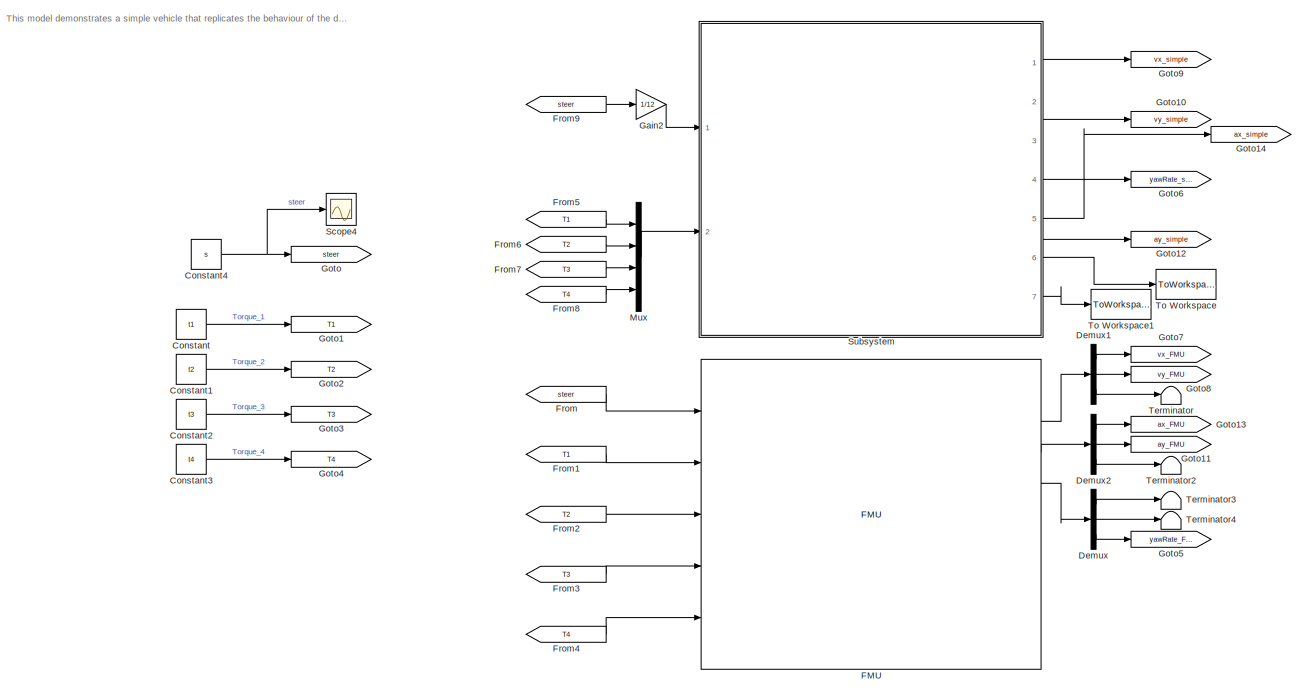
[diagram: root canvas - part 1/2, most of the canvas]
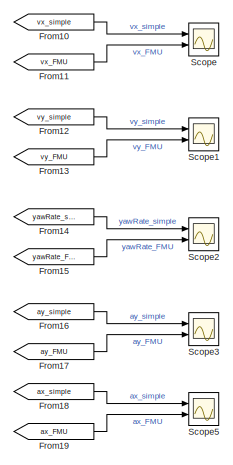
[diagram: root canvas - part 2/2, middle right region]
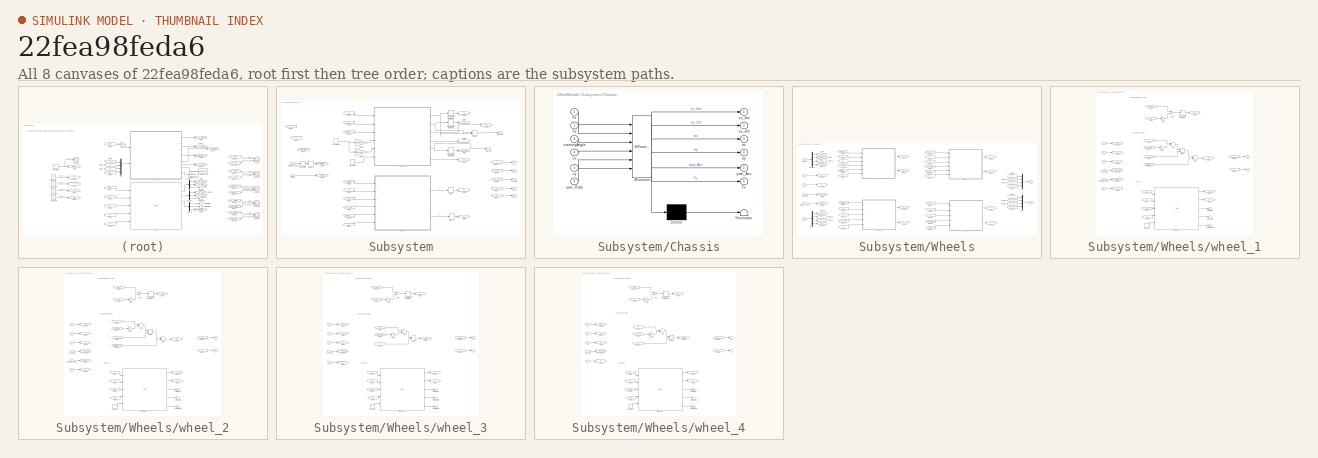
[diagram: thumbnail index - all 8 canvases of the model, root first then tree order]
MODEL slx_22fea98feda6
KIND model
CONFIG AbsTol = auto
CONFIG EnableMultiTasking = off
CONFIG FixedStep = 0.01
CONFIG MaxStep = auto
CONFIG MinStep = auto
CONFIG RelTol = 1e-3
CONFIG SampleTimeConstraint = Unconstrained
CONFIG Solver = FixedStepAuto
CONFIG SolverName = FixedStepAuto
CONFIG StartTime = 0.0
CONFIG StopTime = 10
BLOCK [Constant] Constant
  Value = t1
BLOCK [Constant] Constant1
  Value = t2
BLOCK [Constant] Constant2
  Value = t3
BLOCK [Constant] Constant3
  Value = t4
BLOCK [Constant] Constant4
  Value = s
BLOCK [Demux] Demux
  DisplayOption = bar
  Outputs = 3
  Ports = [1, 3]
BLOCK [Demux] Demux1
  DisplayOption = bar
  Outputs = 3
  Ports = [1, 3]
BLOCK [Demux] Demux2
  DisplayOption = bar
  Outputs = 3
  Ports = [1, 3]
BLOCK [FMU] FMU
  FMUMode = CoSimulation
  FMUName = MED2018_VehicleModel.fmu
  FMUSampleTime = -1
  MaskDisplay = if (exist([Simulink.fileGenControl('get','CacheFolder') '\slprj\_fmu\1f5a25ec6c86b4ef435058314a7136be\MED2018_VehicleModel\model.png'],'file'))\n    image([Simulink.fileGenControl('get','CacheFolder') '\slprj\_fmu\1f5a25ec6c86b4ef435058314a7136be\MED2018_VehicleModel\model.png']);\n    text(0.03, 0.97, 'MED2018.VehicleModel', 'horizontalAlignment', 'left', 'verticalAlignment', 'top');\nelse\n    disp(...<+596ch>
  MaskPromptString = Communication StepsizeCommunication stepsize between FMU and Simulink
  MaskType = MED2018.VehicleModel [Co-Simulation, v2.0]
  Ports = [5, 9]
BLOCK [From] From
  GotoTag = steer
BLOCK [From] From1
  GotoTag = T1
BLOCK [From] From10
  GotoTag = vx_simple
BLOCK [From] From11
  GotoTag = vx_FMU
BLOCK [From] From12
  GotoTag = vy_simple
BLOCK [From] From13
  GotoTag = vy_FMU
BLOCK [From] From14
  GotoTag = yawRate_simple
BLOCK [From] From15
  GotoTag = yawRate_FMU
BLOCK [From] From16
  GotoTag = ay_simple
BLOCK [From] From17
  GotoTag = ay_FMU
BLOCK [From] From18
  GotoTag = ax_simple
BLOCK [From] From19
  GotoTag = ax_FMU
BLOCK [From] From2
  GotoTag = T2
BLOCK [From] From3
  GotoTag = T3
BLOCK [From] From4
  GotoTag = T4
BLOCK [From] From5
  GotoTag = T1
BLOCK [From] From6
  GotoTag = T2
BLOCK [From] From7
  GotoTag = T3
BLOCK [From] From8
  GotoTag = T4
BLOCK [From] From9
  GotoTag = steer
BLOCK [Gain] Gain2
  Gain = 1/12
  OutDataTypeStr = Inherit: Inherit via internal rule
  ParamDataTypeStr = Inherit: Inherit via internal rule
  SaturateOnIntegerOverflow = off
BLOCK [Goto] Goto
  GotoTag = steer
BLOCK [Goto] Goto1
  GotoTag = T1
BLOCK [Goto] Goto10
  GotoTag = vy_simple
BLOCK [Goto] Goto11
  GotoTag = ay_FMU
BLOCK [Goto] Goto12
  GotoTag = ay_simple
BLOCK [Goto] Goto13
  GotoTag = ax_FMU
BLOCK [Goto] Goto14
  GotoTag = ax_simple
BLOCK [Goto] Goto2
  GotoTag = T2
BLOCK [Goto] Goto3
  GotoTag = T3
BLOCK [Goto] Goto4
  GotoTag = T4
BLOCK [Goto] Goto5
  GotoTag = yawRate_FMU
BLOCK [Goto] Goto6
  GotoTag = yawRate_simple
BLOCK [Goto] Goto7
  GotoTag = vx_FMU
BLOCK [Goto] Goto8
  GotoTag = vy_FMU
BLOCK [Goto] Goto9
  GotoTag = vx_simple
BLOCK [Mux] Mux
  DisplayOption = bar
  Ports = [4, 1]
BLOCK [Scope] Scope
  NumInputPorts = 2
  Ports = [2]
  ScopeSpecificationString = Simulink.scopes.TimeScopeBlockCfg('CurrentConfiguration', extmgr.ConfigurationSet(extmgr.Configuration('Core','General UI',true),extmgr.Configuration('Core','Source UI',true),extmgr.Configuration('Sources','WiredSimulink',true),extmgr.Configuration('Visuals','Time Domain',true,'SerializedDisplays',{struct('MinYLimReal','15.79467','MaxYLimReal','20.86538','YLabelReal','','MinYLimMag','15.79467','Ma...<+1388ch>
BLOCK [Scope] Scope1
  NumInputPorts = 2
  Ports = [2]
  ScopeSpecificationString = Simulink.scopes.TimeScopeBlockCfg('CurrentConfiguration', extmgr.ConfigurationSet(extmgr.Configuration('Core','General UI',true),extmgr.Configuration('Core','Source UI',true),extmgr.Configuration('Sources','WiredSimulink',true,'DataLoggingVariableName','ScopeData1'),extmgr.Configuration('Visuals','Time Domain',true,'SerializedDisplays',{struct('MinYLimReal','-0.60925','MaxYLimReal','0.41192','YLab...<+1414ch>
BLOCK [Scope] Scope2
  NumInputPorts = 2
  Ports = [2]
  ScopeSpecificationString = Simulink.scopes.TimeScopeBlockCfg('CurrentConfiguration', extmgr.ConfigurationSet(extmgr.Configuration('Core','General UI',true),extmgr.Configuration('Core','Source UI',true),extmgr.Configuration('Sources','WiredSimulink',true,'DataLoggingVariableName','ScopeData2'),extmgr.Configuration('Visuals','Time Domain',true,'SerializedDisplays',{struct('MinYLimReal','-0.30103','MaxYLimReal','0.34992','YLab...<+1440ch>
BLOCK [Scope] Scope3
  NumInputPorts = 2
  Ports = [2]
  ScopeSpecificationString = Simulink.scopes.TimeScopeBlockCfg('CurrentConfiguration', extmgr.ConfigurationSet(extmgr.Configuration('Core','General UI',true),extmgr.Configuration('Core','Source UI',true),extmgr.Configuration('Sources','WiredSimulink',true,'DataLoggingVariableName','ScopeData3'),extmgr.Configuration('Visuals','Time Domain',true,'SerializedDisplays',{struct('MinYLimReal','-4.2624','MaxYLimReal','11.3736','YLabe...<+1428ch>
BLOCK [Scope] Scope4
  NumInputPorts = 1
  Ports = [1]
  ScopeSpecificationString = Simulink.scopes.TimeScopeBlockCfg('CurrentConfiguration', extmgr.ConfigurationSet(extmgr.Configuration('Core','General UI',true),extmgr.Configuration('Core','Source UI',true),extmgr.Configuration('Sources','WiredSimulink',true,'DataLoggingVariableName','ScopeData4'),extmgr.Configuration('Visuals','Time Domain',true,'SerializedDisplays',{struct('MinYLimReal','-0.0625','MaxYLimReal','0.0625','YLabel...<+1407ch>
BLOCK [Scope] Scope5
  NumInputPorts = 2
  Ports = [2]
  ScopeSpecificationString = Simulink.scopes.TimeScopeBlockCfg('CurrentConfiguration', extmgr.ConfigurationSet(extmgr.Configuration('Core','General UI',true),extmgr.Configuration('Core','Source UI',true),extmgr.Configuration('Sources','WiredSimulink',true,'DataLoggingVariableName','ScopeData1'),extmgr.Configuration('Visuals','Time Domain',true,'SerializedDisplays',{struct('MinYLimReal','-13.06616','MaxYLimReal','13.12349','YL...<+1423ch>
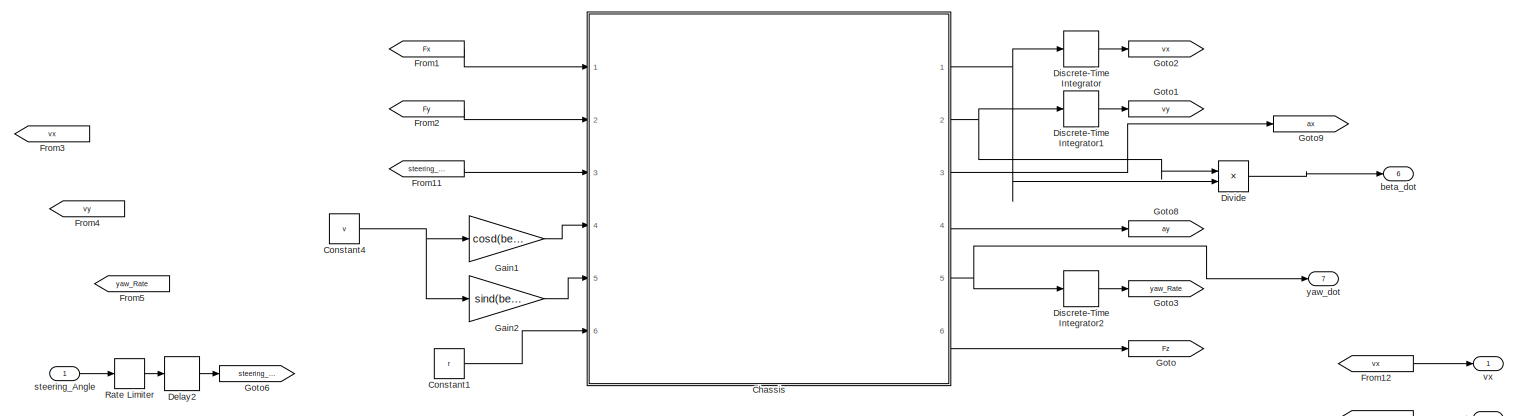
[diagram: Subsystem - part 1/2, full width, top band]
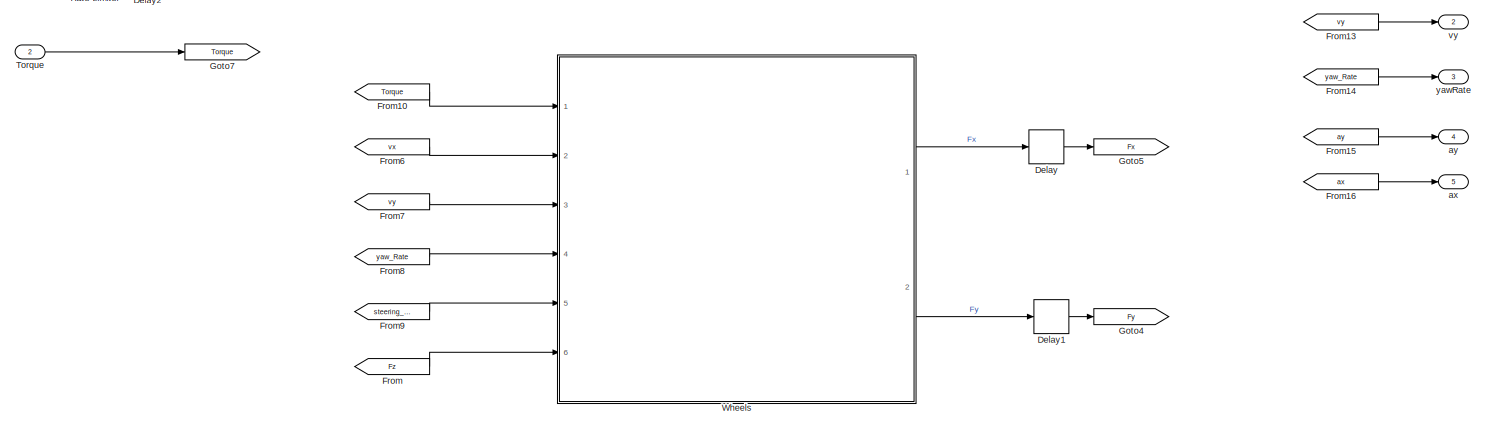
[diagram: Subsystem - part 2/2, full width, bottom band]
BLOCK [SubSystem] Subsystem
  Ports = [2, 7]
  RequestExecContextInheritance = off
  Variant = off
BLOCK [SubSystem] Subsystem/Chassis
  ErrorFcn = Stateflow.Translate.translate
  PermitHierarchicalResolution = ExplicitOnly
  Ports = [6, 6]
  RequestExecContextInheritance = off
  SFBlockType = MATLAB Function
  TreatAsAtomicUnit = on
  Variant = off
BLOCK [Demux] Subsystem/Chassis/ Demux 
  Outputs = 1
  Ports = [1, 1]
BLOCK [S-Function] Subsystem/Chassis/ SFunction 
  EnableBusSupport = on
  FunctionName = sf_sfun
  Parameters = Izz,g,h,lf,lr,m,tf,tr
  PortCounts = [6 7]
  Ports = [6, 7]
  SFcnIsStateOwnerBlock = off
  SFunctionDeploymentMode = off
  Tag = Stateflow S-Function modelfit 2
BLOCK [Terminator] Subsystem/Chassis/ Terminator 
BLOCK [Inport] Subsystem/Chassis/Fx
  IconDisplay = Port number
BLOCK [Inport] Subsystem/Chassis/Fy
  IconDisplay = Port number
  Port = 2
BLOCK [Outport] Subsystem/Chassis/Fz
  IconDisplay = Port number
  Port = 6
BLOCK [Outport] Subsystem/Chassis/ax
  IconDisplay = Port number
  Port = 3
BLOCK [Outport] Subsystem/Chassis/ay
  IconDisplay = Port number
  Port = 4
BLOCK [Inport] Subsystem/Chassis/steeringAngle
  IconDisplay = Port number
  Port = 3
BLOCK [Inport] Subsystem/Chassis/vx
  IconDisplay = Port number
  Port = 4
BLOCK [Outport] Subsystem/Chassis/vx_dot
  IconDisplay = Port number
BLOCK [Inport] Subsystem/Chassis/vy
  IconDisplay = Port number
  Port = 5
BLOCK [Outport] Subsystem/Chassis/vy_dot
  IconDisplay = Port number
  Port = 2
BLOCK [Outport] Subsystem/Chassis/yaw_Acc
  IconDisplay = Port number
  Port = 5
BLOCK [Inport] Subsystem/Chassis/yaw_Rate
  IconDisplay = Port number
  Port = 6
BLOCK [Constant] Subsystem/Constant1
  Value = r
BLOCK [Constant] Subsystem/Constant4
  Value = v
BLOCK [Delay] Subsystem/Delay
  DelayLength = 1
  InitialCondition = [m*g*lr/(lf+lr)/2;m*g*lr/(lf+lr)/2;m*g*lf/(lf+lr)/2;m*g*lf/(lf+lr)/2]
  InputPortMap = u0
  Ports = [1, 1]
BLOCK [Delay] Subsystem/Delay1
  DelayLength = 1
  InitialCondition = [m*g*lr/(lf+lr)/2;m*g*lr/(lf+lr)/2;m*g*lf/(lf+lr)/2;m*g*lf/(lf+lr)/2]
  InputPortMap = u0
  Ports = [1, 1]
BLOCK [Delay] Subsystem/Delay2
  DelayLength = 20
  InitialCondition = 0
  InputPortMap = u0
  Ports = [1, 1]
BLOCK [DiscreteIntegrator] Subsystem/Discrete-Time Integrator
  ICPrevOutput = DiscIntNeverNeededParam
  ICPrevScaledInput = DiscIntNeverNeededParam
  InitialCondition = 60*5/18
  InitialConditionSetting = State (most efficient)
  Ports = [1, 1]
  SampleTime = -1
BLOCK [DiscreteIntegrator] Subsystem/Discrete-Time Integrator1
  ICPrevOutput = DiscIntNeverNeededParam
  ICPrevScaledInput = DiscIntNeverNeededParam
  InitialConditionSetting = State (most efficient)
  Ports = [1, 1]
  SampleTime = -1
BLOCK [DiscreteIntegrator] Subsystem/Discrete-Time Integrator2
  ICPrevOutput = DiscIntNeverNeededParam
  ICPrevScaledInput = DiscIntNeverNeededParam
  InitialConditionSetting = State (most efficient)
  Ports = [1, 1]
  SampleTime = -1
BLOCK [Product] Subsystem/Divide
  InputSameDT = off
  Inputs = */
  OutDataTypeStr = Inherit: Inherit via internal rule
  Ports = [2, 1]
  RndMeth = Floor
  SaturateOnIntegerOverflow = off
BLOCK [From] Subsystem/From
  GotoTag = Fz
BLOCK [From] Subsystem/From1
  GotoTag = Fx
BLOCK [From] Subsystem/From10
  GotoTag = Torque
BLOCK [From] Subsystem/From11
  GotoTag = steering_Angle
BLOCK [From] Subsystem/From12
  GotoTag = vx
BLOCK [From] Subsystem/From13
  GotoTag = vy
BLOCK [From] Subsystem/From14
  GotoTag = yaw_Rate
BLOCK [From] Subsystem/From15
  GotoTag = ay
BLOCK [From] Subsystem/From16
  GotoTag = ax
BLOCK [From] Subsystem/From2
  GotoTag = Fy
BLOCK [From] Subsystem/From3
  GotoTag = vx
BLOCK [From] Subsystem/From4
  GotoTag = vy
BLOCK [From] Subsystem/From5
  GotoTag = yaw_Rate
BLOCK [From] Subsystem/From6
  GotoTag = vx
BLOCK [From] Subsystem/From7
  GotoTag = vy
BLOCK [From] Subsystem/From8
  GotoTag = yaw_Rate
BLOCK [From] Subsystem/From9
  GotoTag = steering_Angle
BLOCK [Gain] Subsystem/Gain1
  Gain = cosd(beta)
  OutDataTypeStr = Inherit: Inherit via internal rule
  ParamDataTypeStr = Inherit: Inherit via internal rule
  SaturateOnIntegerOverflow = off
BLOCK [Gain] Subsystem/Gain2
  Gain = sind(beta)
  OutDataTypeStr = Inherit: Inherit via internal rule
  ParamDataTypeStr = Inherit: Inherit via internal rule
  SaturateOnIntegerOverflow = off
BLOCK [Goto] Subsystem/Goto
  GotoTag = Fz
BLOCK [Goto] Subsystem/Goto1
  GotoTag = vy
BLOCK [Goto] Subsystem/Goto2
  GotoTag = vx
BLOCK [Goto] Subsystem/Goto3
  GotoTag = yaw_Rate
BLOCK [Goto] Subsystem/Goto4
  GotoTag = Fy
BLOCK [Goto] Subsystem/Goto5
  GotoTag = Fx
BLOCK [Goto] Subsystem/Goto6
  GotoTag = steering_Angle
BLOCK [Goto] Subsystem/Goto7
  GotoTag = Torque
BLOCK [Goto] Subsystem/Goto8
  GotoTag = ay
BLOCK [Goto] Subsystem/Goto9
  GotoTag = ax
BLOCK [RateLimiter] Subsystem/Rate Limiter
  FallingSlewLimit = -500*pi/180/12
  RisingSlewLimit = 500*pi/180/12
  SampleTimeMode = inherited
BLOCK [Inport] Subsystem/Torque
  IconDisplay = Port number
  Port = 2
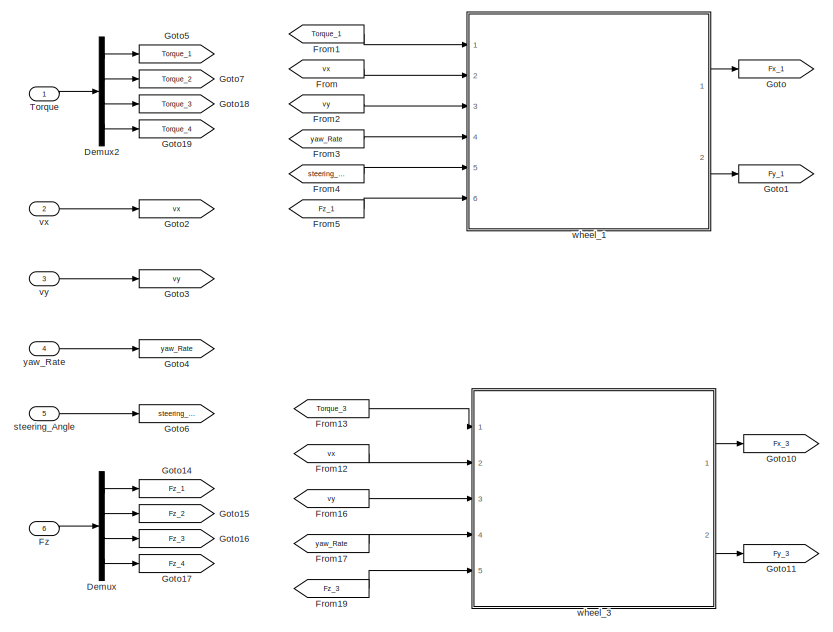
[diagram: Subsystem/Wheels - part 1/2, left side, full height]
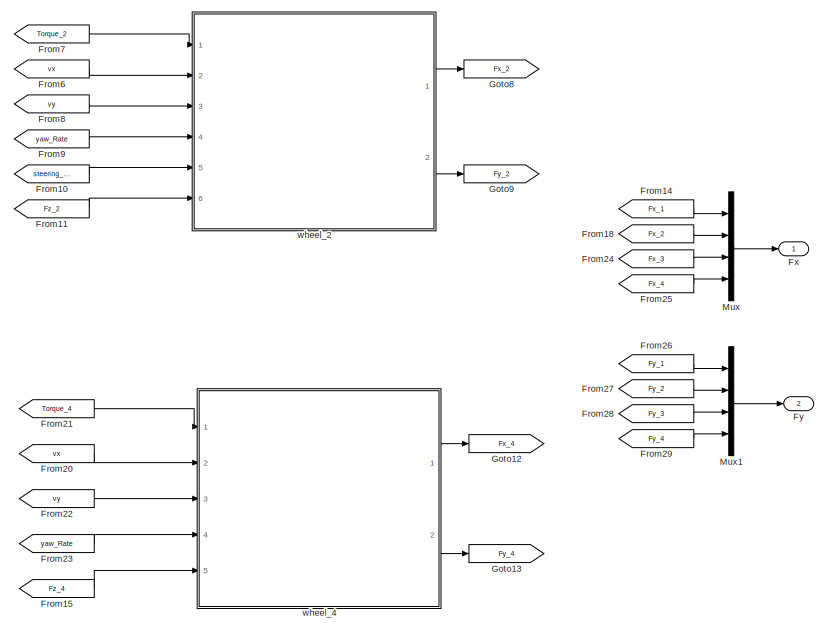
[diagram: Subsystem/Wheels - part 2/2, right side, full height]
BLOCK [SubSystem] Subsystem/Wheels
  Ports = [6, 2]
  Priority = 0
  RequestExecContextInheritance = off
  Variant = off
BLOCK [Demux] Subsystem/Wheels/Demux
  DisplayOption = bar
  Ports = [1, 4]
BLOCK [Demux] Subsystem/Wheels/Demux2
  DisplayOption = bar
  Ports = [1, 4]
BLOCK [From] Subsystem/Wheels/From
  GotoTag = vx
BLOCK [From] Subsystem/Wheels/From1
  GotoTag = Torque_1
BLOCK [From] Subsystem/Wheels/From10
  GotoTag = steering_Angle
BLOCK [From] Subsystem/Wheels/From11
  GotoTag = Fz_2
BLOCK [From] Subsystem/Wheels/From12
  GotoTag = vx
BLOCK [From] Subsystem/Wheels/From13
  GotoTag = Torque_3
BLOCK [From] Subsystem/Wheels/From14
  GotoTag = Fx_1
BLOCK [From] Subsystem/Wheels/From15
  GotoTag = Fz_4
BLOCK [From] Subsystem/Wheels/From16
  GotoTag = vy
BLOCK [From] Subsystem/Wheels/From17
  GotoTag = yaw_Rate
BLOCK [From] Subsystem/Wheels/From18
  GotoTag = Fx_2
BLOCK [From] Subsystem/Wheels/From19
  GotoTag = Fz_3
BLOCK [From] Subsystem/Wheels/From2
  GotoTag = vy
BLOCK [From] Subsystem/Wheels/From20
  GotoTag = vx
BLOCK [From] Subsystem/Wheels/From21
  GotoTag = Torque_4
BLOCK [From] Subsystem/Wheels/From22
  GotoTag = vy
BLOCK [From] Subsystem/Wheels/From23
  GotoTag = yaw_Rate
BLOCK [From] Subsystem/Wheels/From24
  GotoTag = Fx_3
BLOCK [From] Subsystem/Wheels/From25
  GotoTag = Fx_4
BLOCK [From] Subsystem/Wheels/From26
  GotoTag = Fy_1
BLOCK [From] Subsystem/Wheels/From27
  GotoTag = Fy_2
BLOCK [From] Subsystem/Wheels/From28
  GotoTag = Fy_3
BLOCK [From] Subsystem/Wheels/From29
  GotoTag = Fy_4
BLOCK [From] Subsystem/Wheels/From3
  GotoTag = yaw_Rate
BLOCK [From] Subsystem/Wheels/From4
  GotoTag = steering_Angle
BLOCK [From] Subsystem/Wheels/From5
  GotoTag = Fz_1
BLOCK [From] Subsystem/Wheels/From6
  GotoTag = vx
BLOCK [From] Subsystem/Wheels/From7
  GotoTag = Torque_2
BLOCK [From] Subsystem/Wheels/From8
  GotoTag = vy
BLOCK [From] Subsystem/Wheels/From9
  GotoTag = yaw_Rate
BLOCK [Outport] Subsystem/Wheels/Fx
  IconDisplay = Port number
BLOCK [Outport] Subsystem/Wheels/Fy
  IconDisplay = Port number
  Port = 2
BLOCK [Inport] Subsystem/Wheels/Fz
  IconDisplay = Port number
  Port = 6
BLOCK [Goto] Subsystem/Wheels/Goto
  GotoTag = Fx_1
BLOCK [Goto] Subsystem/Wheels/Goto1
  GotoTag = Fy_1
BLOCK [Goto] Subsystem/Wheels/Goto10
  GotoTag = Fx_3
BLOCK [Goto] Subsystem/Wheels/Goto11
  GotoTag = Fy_3
BLOCK [Goto] Subsystem/Wheels/Goto12
  GotoTag = Fx_4
BLOCK [Goto] Subsystem/Wheels/Goto13
  GotoTag = Fy_4
BLOCK [Goto] Subsystem/Wheels/Goto14
  GotoTag = Fz_1
BLOCK [Goto] Subsystem/Wheels/Goto15
  GotoTag = Fz_2
BLOCK [Goto] Subsystem/Wheels/Goto16
  GotoTag = Fz_3
BLOCK [Goto] Subsystem/Wheels/Goto17
  GotoTag = Fz_4
BLOCK [Goto] Subsystem/Wheels/Goto18
  GotoTag = Torque_3
BLOCK [Goto] Subsystem/Wheels/Goto19
  GotoTag = Torque_4
BLOCK [Goto] Subsystem/Wheels/Goto2
  GotoTag = vx
BLOCK [Goto] Subsystem/Wheels/Goto3
  GotoTag = vy
BLOCK [Goto] Subsystem/Wheels/Goto4
  GotoTag = yaw_Rate
BLOCK [Goto] Subsystem/Wheels/Goto5
  GotoTag = Torque_1
BLOCK [Goto] Subsystem/Wheels/Goto6
  GotoTag = steering_Angle
BLOCK [Goto] Subsystem/Wheels/Goto7
  GotoTag = Torque_2
BLOCK [Goto] Subsystem/Wheels/Goto8
  GotoTag = Fx_2
BLOCK [Goto] Subsystem/Wheels/Goto9
  GotoTag = Fy_2
BLOCK [Mux] Subsystem/Wheels/Mux
  DisplayOption = bar
  Ports = [4, 1]
BLOCK [Mux] Subsystem/Wheels/Mux1
  DisplayOption = bar
  Ports = [4, 1]
BLOCK [Inport] Subsystem/Wheels/Torque
  IconDisplay = Port number
BLOCK [Inport] Subsystem/Wheels/steering_Angle
  IconDisplay = Port number
  Port = 5
BLOCK [Inport] Subsystem/Wheels/vx
  IconDisplay = Port number
  Port = 2
BLOCK [Inport] Subsystem/Wheels/vy
  IconDisplay = Port number
  Port = 3
BLOCK [SubSystem] Subsystem/Wheels/wheel_1
  Ports = [6, 2]
  RequestExecContextInheritance = off
  Variant = off
BLOCK [Sum] Subsystem/Wheels/wheel_1/Add
  InputSameDT = off
  Inputs = --
  OutDataTypeStr = Inherit: Inherit via internal rule
  Ports = [2, 1]
  SaturateOnIntegerOverflow = off
BLOCK [Sum] Subsystem/Wheels/wheel_1/Add1
  InputSameDT = off
  OutDataTypeStr = Inherit: Inherit via internal rule
  Ports = [2, 1]
  SaturateOnIntegerOverflow = off
BLOCK [Constant] Subsystem/Wheels/wheel_1/Constant
  Value = 0
BLOCK [DiscreteIntegrator] Subsystem/Wheels/wheel_1/Discrete-Time Integrator
  ICPrevOutput = DiscIntNeverNeededParam
  ICPrevScaledInput = DiscIntNeverNeededParam
  InitialConditionSetting = State (most efficient)
  Ports = [1, 1]
  SampleTime = -1
BLOCK [Product] Subsystem/Wheels/wheel_1/Divide
  InputSameDT = off
  Inputs = */
  OutDataTypeStr = Inherit: Inherit via internal rule
  Ports = [2, 1]
  RndMeth = Floor
  SaturateOnIntegerOverflow = off
BLOCK [From] Subsystem/Wheels/wheel_1/From1
  GotoTag = vx
BLOCK [From] Subsystem/Wheels/wheel_1/From10
  GotoTag = Fz
BLOCK [From] Subsystem/Wheels/wheel_1/From11
  GotoTag = Fx
BLOCK [From] Subsystem/Wheels/wheel_1/From12
  GotoTag = Fy
BLOCK [From] Subsystem/Wheels/wheel_1/From2
  GotoTag = Torque
BLOCK [From] Subsystem/Wheels/wheel_1/From3
  GotoTag = w
BLOCK [From] Subsystem/Wheels/wheel_1/From4
  GotoTag = Fx
BLOCK [From] Subsystem/Wheels/wheel_1/From5
  GotoTag = vy
BLOCK [From] Subsystem/Wheels/wheel_1/From6
  GotoTag = yaw_Rate
BLOCK [From] Subsystem/Wheels/wheel_1/From7
  GotoTag = vx
BLOCK [From] Subsystem/Wheels/wheel_1/From8
  GotoTag = steering_Angle
BLOCK [From] Subsystem/Wheels/wheel_1/From9
  GotoTag = beta
BLOCK [Outport] Subsystem/Wheels/wheel_1/Fx
  IconDisplay = Port number
BLOCK [Outport] Subsystem/Wheels/wheel_1/Fy
  IconDisplay = Port number
  Port = 2
BLOCK [Inport] Subsystem/Wheels/wheel_1/Fz
  IconDisplay = Port number
  Port = 6
BLOCK [Gain] Subsystem/Wheels/wheel_1/Gain
  Gain = r
  OutDataTypeStr = Inherit: Inherit via internal rule
  ParamDataTypeStr = Inherit: Inherit via internal rule
  SaturateOnIntegerOverflow = off
BLOCK [Gain] Subsystem/Wheels/wheel_1/Gain1
  Gain = lf
  OutDataTypeStr = Inherit: Inherit via internal rule
  ParamDataTypeStr = Inherit: Inherit via internal rule
  SaturateOnIntegerOverflow = off
BLOCK [Goto] Subsystem/Wheels/wheel_1/Goto1
  GotoTag = vx
BLOCK [Goto] Subsystem/Wheels/wheel_1/Goto10
  GotoTag = Fx
BLOCK [Goto] Subsystem/Wheels/wheel_1/Goto2
  GotoTag = vy
BLOCK [Goto] Subsystem/Wheels/wheel_1/Goto3
  GotoTag = yaw_Rate
BLOCK [Goto] Subsystem/Wheels/wheel_1/Goto4
  GotoTag = steering_Angle
BLOCK [Goto] Subsystem/Wheels/wheel_1/Goto5
  GotoTag = Fz
BLOCK [Goto] Subsystem/Wheels/wheel_1/Goto6
  GotoTag = w
BLOCK [Goto] Subsystem/Wheels/wheel_1/Goto7
  GotoTag = beta
BLOCK [Goto] Subsystem/Wheels/wheel_1/Goto8
  GotoTag = Torque
BLOCK [Goto] Subsystem/Wheels/wheel_1/Goto9
  GotoTag = Fy
BLOCK [Sum] Subsystem/Wheels/wheel_1/Sum
  InputSameDT = off
  Inputs = +-
  OutDataTypeStr = Inherit: Inherit via internal rule
  Ports = [2, 1]
  SaturateOnIntegerOverflow = off
BLOCK [Inport] Subsystem/Wheels/wheel_1/T
  IconDisplay = Port number
BLOCK [Terminator] Subsystem/Wheels/wheel_1/Terminator
BLOCK [Terminator] Subsystem/Wheels/wheel_1/Terminator1
BLOCK [Terminator] Subsystem/Wheels/wheel_1/Terminator2
BLOCK [Inport] Subsystem/Wheels/wheel_1/steering_Angle
  IconDisplay = Port number
  Port = 5
BLOCK [FMU] Subsystem/Wheels/wheel_1/tireForces
  FMUMode = CoSimulation
  FMUName = MED2018_TireModel.fmu
  FMUSampleTime = -1
  MaskPromptString = Communication StepsizeCommunication stepsize between FMU and Simulink
  MaskType = TyreFMUContainer [Co-Simulation, v2.0]
  Ports = [5, 5]
BLOCK [Inport] Subsystem/Wheels/wheel_1/vx
  IconDisplay = Port number
  Port = 2
BLOCK [Inport] Subsystem/Wheels/wheel_1/vy
  IconDisplay = Port number
  Port = 3
BLOCK [Inport] Subsystem/Wheels/wheel_1/yaw_Rate
  IconDisplay = Port number
  Port = 4
BLOCK [SubSystem] Subsystem/Wheels/wheel_2
  Ports = [6, 2]
  RequestExecContextInheritance = off
  Variant = off
BLOCK [Sum] Subsystem/Wheels/wheel_2/Add
  InputSameDT = off
  Inputs = --
  OutDataTypeStr = Inherit: Inherit via internal rule
  Ports = [2, 1]
  SaturateOnIntegerOverflow = off
BLOCK [Sum] Subsystem/Wheels/wheel_2/Add1
  InputSameDT = off
  OutDataTypeStr = Inherit: Inherit via internal rule
  Ports = [2, 1]
  SaturateOnIntegerOverflow = off
BLOCK [Constant] Subsystem/Wheels/wheel_2/Constant
  Value = 0
BLOCK [DiscreteIntegrator] Subsystem/Wheels/wheel_2/Discrete-Time Integrator
  ICPrevOutput = DiscIntNeverNeededParam
  ICPrevScaledInput = DiscIntNeverNeededParam
  InitialConditionSetting = State (most efficient)
  Ports = [1, 1]
  SampleTime = -1
BLOCK [Product] Subsystem/Wheels/wheel_2/Divide
  InputSameDT = off
  Inputs = */
  OutDataTypeStr = Inherit: Inherit via internal rule
  Ports = [2, 1]
  RndMeth = Floor
  SaturateOnIntegerOverflow = off
BLOCK [From] Subsystem/Wheels/wheel_2/From1
  GotoTag = vx
BLOCK [From] Subsystem/Wheels/wheel_2/From10
  GotoTag = Fz
BLOCK [From] Subsystem/Wheels/wheel_2/From11
  GotoTag = Fx
BLOCK [From] Subsystem/Wheels/wheel_2/From12
  GotoTag = Fy
BLOCK [From] Subsystem/Wheels/wheel_2/From2
  GotoTag = Torque
BLOCK [From] Subsystem/Wheels/wheel_2/From3
  GotoTag = w
BLOCK [From] Subsystem/Wheels/wheel_2/From4
  GotoTag = Fx
BLOCK [From] Subsystem/Wheels/wheel_2/From5
  GotoTag = vy
BLOCK [From] Subsystem/Wheels/wheel_2/From6
  GotoTag = yaw_Rate
BLOCK [From] Subsystem/Wheels/wheel_2/From7
  GotoTag = vx
BLOCK [From] Subsystem/Wheels/wheel_2/From8
  GotoTag = steering_Angle
BLOCK [From] Subsystem/Wheels/wheel_2/From9
  GotoTag = beta
BLOCK [Outport] Subsystem/Wheels/wheel_2/Fx
  IconDisplay = Port number
BLOCK [Outport] Subsystem/Wheels/wheel_2/Fy
  IconDisplay = Port number
  Port = 2
BLOCK [Inport] Subsystem/Wheels/wheel_2/Fz
  IconDisplay = Port number
  Port = 6
BLOCK [Gain] Subsystem/Wheels/wheel_2/Gain
  Gain = r
  OutDataTypeStr = Inherit: Inherit via internal rule
  ParamDataTypeStr = Inherit: Inherit via internal rule
  SaturateOnIntegerOverflow = off
BLOCK [Gain] Subsystem/Wheels/wheel_2/Gain1
  Gain = lf
  OutDataTypeStr = Inherit: Inherit via internal rule
  ParamDataTypeStr = Inherit: Inherit via internal rule
  SaturateOnIntegerOverflow = off
BLOCK [Goto] Subsystem/Wheels/wheel_2/Goto1
  GotoTag = vx
BLOCK [Goto] Subsystem/Wheels/wheel_2/Goto10
  GotoTag = Fx
BLOCK [Goto] Subsystem/Wheels/wheel_2/Goto2
  GotoTag = vy
BLOCK [Goto] Subsystem/Wheels/wheel_2/Goto3
  GotoTag = yaw_Rate
BLOCK [Goto] Subsystem/Wheels/wheel_2/Goto4
  GotoTag = steering_Angle
BLOCK [Goto] Subsystem/Wheels/wheel_2/Goto5
  GotoTag = Fz
BLOCK [Goto] Subsystem/Wheels/wheel_2/Goto6
  GotoTag = w
BLOCK [Goto] Subsystem/Wheels/wheel_2/Goto7
  GotoTag = beta
BLOCK [Goto] Subsystem/Wheels/wheel_2/Goto8
  GotoTag = Torque
BLOCK [Goto] Subsystem/Wheels/wheel_2/Goto9
  GotoTag = Fy
BLOCK [Sum] Subsystem/Wheels/wheel_2/Sum
  InputSameDT = off
  Inputs = +-
  OutDataTypeStr = Inherit: Inherit via internal rule
  Ports = [2, 1]
  SaturateOnIntegerOverflow = off
BLOCK [Inport] Subsystem/Wheels/wheel_2/T
  IconDisplay = Port number
BLOCK [Terminator] Subsystem/Wheels/wheel_2/Terminator
BLOCK [Terminator] Subsystem/Wheels/wheel_2/Terminator1
BLOCK [Terminator] Subsystem/Wheels/wheel_2/Terminator2
BLOCK [Inport] Subsystem/Wheels/wheel_2/steering_Angle
  IconDisplay = Port number
  Port = 5
BLOCK [FMU] Subsystem/Wheels/wheel_2/tireForces
  FMUMode = CoSimulation
  FMUName = MED2018_TireModel.fmu
  FMUSampleTime = -1
  MaskPromptString = Communication StepsizeCommunication stepsize between FMU and Simulink
  MaskType = TyreFMUContainer [Co-Simulation, v2.0]
  Ports = [5, 5]
BLOCK [Inport] Subsystem/Wheels/wheel_2/vx
  IconDisplay = Port number
  Port = 2
BLOCK [Inport] Subsystem/Wheels/wheel_2/vy
  IconDisplay = Port number
  Port = 3
BLOCK [Inport] Subsystem/Wheels/wheel_2/yaw_Rate
  IconDisplay = Port number
  Port = 4
BLOCK [SubSystem] Subsystem/Wheels/wheel_3
  Ports = [5, 2]
  RequestExecContextInheritance = off
  Variant = off
BLOCK [Sum] Subsystem/Wheels/wheel_3/Add
  InputSameDT = off
  Inputs = -+
  OutDataTypeStr = Inherit: Inherit via internal rule
  Ports = [2, 1]
  SaturateOnIntegerOverflow = off
BLOCK [Constant] Subsystem/Wheels/wheel_3/Constant
  Value = 0
BLOCK [DiscreteIntegrator] Subsystem/Wheels/wheel_3/Discrete-Time Integrator
  ICPrevOutput = DiscIntNeverNeededParam
  ICPrevScaledInput = DiscIntNeverNeededParam
  InitialConditionSetting = State (most efficient)
  Ports = [1, 1]
  SampleTime = -1
BLOCK [Product] Subsystem/Wheels/wheel_3/Divide
  InputSameDT = off
  Inputs = */
  OutDataTypeStr = Inherit: Inherit via internal rule
  Ports = [2, 1]
  RndMeth = Floor
  SaturateOnIntegerOverflow = off
BLOCK [From] Subsystem/Wheels/wheel_3/From1
  GotoTag = vx
BLOCK [From] Subsystem/Wheels/wheel_3/From10
  GotoTag = Fz
BLOCK [From] Subsystem/Wheels/wheel_3/From11
  GotoTag = Fx
BLOCK [From] Subsystem/Wheels/wheel_3/From12
  GotoTag = Fy
BLOCK [From] Subsystem/Wheels/wheel_3/From2
  GotoTag = Torque
BLOCK [From] Subsystem/Wheels/wheel_3/From3
  GotoTag = w
BLOCK [From] Subsystem/Wheels/wheel_3/From4
  GotoTag = Fx
BLOCK [From] Subsystem/Wheels/wheel_3/From5
  GotoTag = vy
BLOCK [From] Subsystem/Wheels/wheel_3/From6
  GotoTag = yaw_Rate
BLOCK [From] Subsystem/Wheels/wheel_3/From7
  GotoTag = vx
BLOCK [From] Subsystem/Wheels/wheel_3/From9
  GotoTag = beta
BLOCK [Outport] Subsystem/Wheels/wheel_3/Fx
  IconDisplay = Port number
BLOCK [Outport] Subsystem/Wheels/wheel_3/Fy
  IconDisplay = Port number
  Port = 2
BLOCK [Inport] Subsystem/Wheels/wheel_3/Fz
  IconDisplay = Port number
  Port = 5
BLOCK [Gain] Subsystem/Wheels/wheel_3/Gain
  Gain = r
  OutDataTypeStr = Inherit: Inherit via internal rule
  ParamDataTypeStr = Inherit: Inherit via internal rule
  SaturateOnIntegerOverflow = off
BLOCK [Gain] Subsystem/Wheels/wheel_3/Gain1
  Gain = lr
  OutDataTypeStr = Inherit: Inherit via internal rule
  ParamDataTypeStr = Inherit: Inherit via internal rule
  SaturateOnIntegerOverflow = off
BLOCK [Goto] Subsystem/Wheels/wheel_3/Goto1
  GotoTag = vx
BLOCK [Goto] Subsystem/Wheels/wheel_3/Goto10
  GotoTag = Fx
BLOCK [Goto] Subsystem/Wheels/wheel_3/Goto2
  GotoTag = vy
BLOCK [Goto] Subsystem/Wheels/wheel_3/Goto3
  GotoTag = yaw_Rate
BLOCK [Goto] Subsystem/Wheels/wheel_3/Goto5
  GotoTag = Fz
BLOCK [Goto] Subsystem/Wheels/wheel_3/Goto6
  GotoTag = w
BLOCK [Goto] Subsystem/Wheels/wheel_3/Goto7
  GotoTag = beta
BLOCK [Goto] Subsystem/Wheels/wheel_3/Goto8
  GotoTag = Torque
BLOCK [Goto] Subsystem/Wheels/wheel_3/Goto9
  GotoTag = Fy
BLOCK [Sum] Subsystem/Wheels/wheel_3/Sum
  InputSameDT = off
  Inputs = +-
  OutDataTypeStr = Inherit: Inherit via internal rule
  Ports = [2, 1]
  SaturateOnIntegerOverflow = off
BLOCK [Inport] Subsystem/Wheels/wheel_3/T
  IconDisplay = Port number
BLOCK [Terminator] Subsystem/Wheels/wheel_3/Terminator
BLOCK [Terminator] Subsystem/Wheels/wheel_3/Terminator1
BLOCK [Terminator] Subsystem/Wheels/wheel_3/Terminator2
BLOCK [FMU] Subsystem/Wheels/wheel_3/tireForces
  FMUMode = CoSimulation
  FMUName = MED2018_TireModel.fmu
  FMUSampleTime = -1
  MaskPromptString = Communication StepsizeCommunication stepsize between FMU and Simulink
  MaskType = TyreFMUContainer [Co-Simulation, v2.0]
  Ports = [5, 5]
BLOCK [Inport] Subsystem/Wheels/wheel_3/vx
  IconDisplay = Port number
  Port = 2
BLOCK [Inport] Subsystem/Wheels/wheel_3/vy
  IconDisplay = Port number
  Port = 3
BLOCK [Inport] Subsystem/Wheels/wheel_3/yaw_Rate
  IconDisplay = Port number
  Port = 4
BLOCK [SubSystem] Subsystem/Wheels/wheel_4
  Ports = [5, 2]
  RequestExecContextInheritance = off
  Variant = off
BLOCK [Sum] Subsystem/Wheels/wheel_4/Add
  InputSameDT = off
  Inputs = -+
  OutDataTypeStr = Inherit: Inherit via internal rule
  Ports = [2, 1]
  SaturateOnIntegerOverflow = off
BLOCK [Constant] Subsystem/Wheels/wheel_4/Constant
  Value = 0
BLOCK [DiscreteIntegrator] Subsystem/Wheels/wheel_4/Discrete-Time Integrator
  ICPrevOutput = DiscIntNeverNeededParam
  ICPrevScaledInput = DiscIntNeverNeededParam
  InitialConditionSetting = State (most efficient)
  Ports = [1, 1]
  SampleTime = -1
BLOCK [Product] Subsystem/Wheels/wheel_4/Divide
  InputSameDT = off
  Inputs = */
  OutDataTypeStr = Inherit: Inherit via internal rule
  Ports = [2, 1]
  RndMeth = Floor
  SaturateOnIntegerOverflow = off
BLOCK [From] Subsystem/Wheels/wheel_4/From1
  GotoTag = vx
BLOCK [From] Subsystem/Wheels/wheel_4/From10
  GotoTag = Fz
BLOCK [From] Subsystem/Wheels/wheel_4/From11
  GotoTag = Fx
BLOCK [From] Subsystem/Wheels/wheel_4/From12
  GotoTag = Fy
BLOCK [From] Subsystem/Wheels/wheel_4/From2
  GotoTag = Torque
BLOCK [From] Subsystem/Wheels/wheel_4/From3
  GotoTag = w
BLOCK [From] Subsystem/Wheels/wheel_4/From4
  GotoTag = Fx
BLOCK [From] Subsystem/Wheels/wheel_4/From5
  GotoTag = vy
BLOCK [From] Subsystem/Wheels/wheel_4/From6
  GotoTag = yaw_Rate
BLOCK [From] Subsystem/Wheels/wheel_4/From7
  GotoTag = vx
BLOCK [From] Subsystem/Wheels/wheel_4/From9
  GotoTag = beta
BLOCK [Outport] Subsystem/Wheels/wheel_4/Fx
  IconDisplay = Port number
BLOCK [Outport] Subsystem/Wheels/wheel_4/Fy
  IconDisplay = Port number
  Port = 2
BLOCK [Inport] Subsystem/Wheels/wheel_4/Fz
  IconDisplay = Port number
  Port = 5
BLOCK [Gain] Subsystem/Wheels/wheel_4/Gain
  Gain = r
  OutDataTypeStr = Inherit: Inherit via internal rule
  ParamDataTypeStr = Inherit: Inherit via internal rule
  SaturateOnIntegerOverflow = off
BLOCK [Gain] Subsystem/Wheels/wheel_4/Gain1
  Gain = lr
  OutDataTypeStr = Inherit: Inherit via internal rule
  ParamDataTypeStr = Inherit: Inherit via internal rule
  SaturateOnIntegerOverflow = off
BLOCK [Goto] Subsystem/Wheels/wheel_4/Goto1
  GotoTag = vx
BLOCK [Goto] Subsystem/Wheels/wheel_4/Goto10
  GotoTag = Fx
BLOCK [Goto] Subsystem/Wheels/wheel_4/Goto2
  GotoTag = vy
BLOCK [Goto] Subsystem/Wheels/wheel_4/Goto3
  GotoTag = yaw_Rate
BLOCK [Goto] Subsystem/Wheels/wheel_4/Goto5
  GotoTag = Fz
BLOCK [Goto] Subsystem/Wheels/wheel_4/Goto6
  GotoTag = w
BLOCK [Goto] Subsystem/Wheels/wheel_4/Goto7
  GotoTag = beta
BLOCK [Goto] Subsystem/Wheels/wheel_4/Goto8
  GotoTag = Torque
BLOCK [Goto] Subsystem/Wheels/wheel_4/Goto9
  GotoTag = Fy
BLOCK [Sum] Subsystem/Wheels/wheel_4/Sum
  InputSameDT = off
  Inputs = +-
  OutDataTypeStr = Inherit: Inherit via internal rule
  Ports = [2, 1]
  SaturateOnIntegerOverflow = off
BLOCK [Inport] Subsystem/Wheels/wheel_4/T
  IconDisplay = Port number
BLOCK [Terminator] Subsystem/Wheels/wheel_4/Terminator
BLOCK [Terminator] Subsystem/Wheels/wheel_4/Terminator1
BLOCK [Terminator] Subsystem/Wheels/wheel_4/Terminator2
BLOCK [FMU] Subsystem/Wheels/wheel_4/tireForces
  FMUDebugLogging = on
  FMUMode = CoSimulation
  FMUName = MED2018_TireModel.fmu
  FMUSampleTime = -1
  MaskPromptString = Communication StepsizeCommunication stepsize between FMU and Simulink
  MaskType = TyreFMUContainer [Co-Simulation, v2.0]
  Ports = [5, 5]
BLOCK [Inport] Subsystem/Wheels/wheel_4/vx
  IconDisplay = Port number
  Port = 2
BLOCK [Inport] Subsystem/Wheels/wheel_4/vy
  IconDisplay = Port number
  Port = 3
BLOCK [Inport] Subsystem/Wheels/wheel_4/yaw_Rate
  IconDisplay = Port number
  Port = 4
BLOCK [Inport] Subsystem/Wheels/yaw_Rate
  IconDisplay = Port number
  Port = 4
BLOCK [Outport] Subsystem/ax
  IconDisplay = Port number
  Port = 5
BLOCK [Outport] Subsystem/ay
  IconDisplay = Port number
  Port = 4
BLOCK [Outport] Subsystem/beta_dot
  IconDisplay = Port number
  Port = 6
BLOCK [Inport] Subsystem/steering_Angle
  IconDisplay = Port number
BLOCK [Outport] Subsystem/vx
  IconDisplay = Port number
BLOCK [Outport] Subsystem/vy
  IconDisplay = Port number
  Port = 2
BLOCK [Outport] Subsystem/yawRate
  IconDisplay = Port number
  Port = 3
BLOCK [Outport] Subsystem/yaw_dot
  IconDisplay = Port number
  Port = 7
BLOCK [Terminator] Terminator
BLOCK [Terminator] Terminator2
BLOCK [Terminator] Terminator3
BLOCK [Terminator] Terminator4
BLOCK [ToWorkspace] To Workspace
  FixptAsFi = on
  MaxDataPoints = inf
  Ports = [1]
  SampleTime = -1
  Save2DSignal = 3-D array (concatenate along third dimension)
  SaveFormat = Timeseries
  VariableName = bdot
BLOCK [ToWorkspace] To Workspace1
  FixptAsFi = on
  MaxDataPoints = inf
  Ports = [1]
  SampleTime = -1
  Save2DSignal = 3-D array (concatenate along third dimension)
  SaveFormat = Timeseries
  VariableName = yaw_dot
ANNOTATION (root): This model demonstrates a simple vehicle that replicates the behaviour of the detailed vehicle. The outputs of both models are compared for a chirp steering input.
ANNOTATION Subsystem/Wheels/wheel_1: Slip Angle Calculation
ANNOTATION Subsystem/Wheels/wheel_1: Tire Forces
ANNOTATION Subsystem/Wheels/wheel_1: Wheel Rotational Dynamics
ANNOTATION Subsystem/Wheels/wheel_2: Slip Angle Calculation
ANNOTATION Subsystem/Wheels/wheel_2: Tire Forces
ANNOTATION Subsystem/Wheels/wheel_2: Wheel Rotational Dynamics
ANNOTATION Subsystem/Wheels/wheel_3: Slip Angle Calculation
ANNOTATION Subsystem/Wheels/wheel_3: Tire Forces
ANNOTATION Subsystem/Wheels/wheel_3: Wheel Rotational Dynamics
ANNOTATION Subsystem/Wheels/wheel_4: Slip Angle Calculation
ANNOTATION Subsystem/Wheels/wheel_4: Tire Forces
ANNOTATION Subsystem/Wheels/wheel_4: Wheel Rotational Dynamics
LINE Constant1:1 -> Goto2:1
LINE Constant2:1 -> Goto3:1
LINE Constant3:1 -> Goto4:1
NET Constant4:1 -> Goto:1, Scope4:1
LINE Constant:1 -> Goto1:1
LINE Demux1:1 -> Goto7:1
LINE Demux1:2 -> Goto8:1
LINE Demux1:3 -> Terminator:1
LINE Demux2:1 -> Goto13:1
LINE Demux2:2 -> Goto11:1
LINE Demux2:3 -> Terminator2:1
LINE Demux:1 -> Terminator3:1
LINE Demux:2 -> Terminator4:1
LINE Demux:3 -> Goto5:1
LINE FMU:2 -> Demux1:1
LINE FMU:3 -> Demux2:1
LINE FMU:4 -> Demux:1
LINE From10:1 -> Scope:1
LINE From11:1 -> Scope:2
LINE From12:1 -> Scope1:1
LINE From13:1 -> Scope1:2
LINE From14:1 -> Scope2:1
LINE From15:1 -> Scope2:2
LINE From16:1 -> Scope3:1
LINE From17:1 -> Scope3:2
LINE From18:1 -> Scope5:1
LINE From19:1 -> Scope5:2
LINE From1:1 -> FMU:2
LINE From2:1 -> FMU:3
LINE From3:1 -> FMU:4
LINE From4:1 -> FMU:5
LINE From5:1 -> Mux:1
LINE From6:1 -> Mux:2
LINE From7:1 -> Mux:3
LINE From8:1 -> Mux:4
LINE From9:1 -> Gain2:1
LINE From:1 -> FMU:1
LINE Gain2:1 -> Subsystem:1
LINE Mux:1 -> Subsystem:2
NET Subsystem/Chassis:1 -> Subsystem/Discrete-Time Integrator:1, Subsystem/Divide:2
NET Subsystem/Chassis:2 -> Subsystem/Discrete-Time Integrator1:1, Subsystem/Divide:1
LINE Subsystem/Chassis:3 -> Subsystem/Goto9:1
LINE Subsystem/Chassis:4 -> Subsystem/Goto8:1
NET Subsystem/Chassis:5 -> Subsystem/Discrete-Time Integrator2:1, Subsystem/yaw_dot:1
LINE Subsystem/Chassis:6 -> Subsystem/Goto:1
LINE Subsystem/Constant1:1 -> Subsystem/Chassis:6
NET Subsystem/Constant4:1 -> Subsystem/Gain1:1, Subsystem/Gain2:1
LINE Subsystem/Delay1:1 -> Subsystem/Goto4:1
LINE Subsystem/Delay2:1 -> Subsystem/Goto6:1
LINE Subsystem/Delay:1 -> Subsystem/Goto5:1
LINE Subsystem/Discrete-Time Integrator1:1 -> Subsystem/Goto1:1
LINE Subsystem/Discrete-Time Integrator2:1 -> Subsystem/Goto3:1
LINE Subsystem/Discrete-Time Integrator:1 -> Subsystem/Goto2:1
LINE Subsystem/Divide:1 -> Subsystem/beta_dot:1
LINE Subsystem/From10:1 -> Subsystem/Wheels:1
LINE Subsystem/From11:1 -> Subsystem/Chassis:3
LINE Subsystem/From12:1 -> Subsystem/vx:1
LINE Subsystem/From13:1 -> Subsystem/vy:1
LINE Subsystem/From14:1 -> Subsystem/yawRate:1
LINE Subsystem/From15:1 -> Subsystem/ay:1
LINE Subsystem/From16:1 -> Subsystem/ax:1
LINE Subsystem/From1:1 -> Subsystem/Chassis:1
LINE Subsystem/From2:1 -> Subsystem/Chassis:2
LINE Subsystem/From6:1 -> Subsystem/Wheels:2
LINE Subsystem/From7:1 -> Subsystem/Wheels:3
LINE Subsystem/From8:1 -> Subsystem/Wheels:4
LINE Subsystem/From9:1 -> Subsystem/Wheels:5
LINE Subsystem/From:1 -> Subsystem/Wheels:6
LINE Subsystem/Gain1:1 -> Subsystem/Chassis:4
LINE Subsystem/Gain2:1 -> Subsystem/Chassis:5
LINE Subsystem/Rate Limiter:1 -> Subsystem/Delay2:1
LINE Subsystem/Torque:1 -> Subsystem/Goto7:1
LINE Subsystem/Wheels/Demux2:1 -> Subsystem/Wheels/Goto5:1
LINE Subsystem/Wheels/Demux2:2 -> Subsystem/Wheels/Goto7:1
LINE Subsystem/Wheels/Demux2:3 -> Subsystem/Wheels/Goto18:1
LINE Subsystem/Wheels/Demux2:4 -> Subsystem/Wheels/Goto19:1
LINE Subsystem/Wheels/Demux:1 -> Subsystem/Wheels/Goto14:1
LINE Subsystem/Wheels/Demux:2 -> Subsystem/Wheels/Goto15:1
LINE Subsystem/Wheels/Demux:3 -> Subsystem/Wheels/Goto16:1
LINE Subsystem/Wheels/Demux:4 -> Subsystem/Wheels/Goto17:1
LINE Subsystem/Wheels/From10:1 -> Subsystem/Wheels/wheel_2:5
LINE Subsystem/Wheels/From11:1 -> Subsystem/Wheels/wheel_2:6
LINE Subsystem/Wheels/From12:1 -> Subsystem/Wheels/wheel_3:2
LINE Subsystem/Wheels/From13:1 -> Subsystem/Wheels/wheel_3:1
LINE Subsystem/Wheels/From14:1 -> Subsystem/Wheels/Mux:1
LINE Subsystem/Wheels/From15:1 -> Subsystem/Wheels/wheel_4:5
LINE Subsystem/Wheels/From16:1 -> Subsystem/Wheels/wheel_3:3
LINE Subsystem/Wheels/From17:1 -> Subsystem/Wheels/wheel_3:4
LINE Subsystem/Wheels/From18:1 -> Subsystem/Wheels/Mux:2
LINE Subsystem/Wheels/From19:1 -> Subsystem/Wheels/wheel_3:5
LINE Subsystem/Wheels/From1:1 -> Subsystem/Wheels/wheel_1:1
LINE Subsystem/Wheels/From20:1 -> Subsystem/Wheels/wheel_4:2
LINE Subsystem/Wheels/From21:1 -> Subsystem/Wheels/wheel_4:1
LINE Subsystem/Wheels/From22:1 -> Subsystem/Wheels/wheel_4:3
LINE Subsystem/Wheels/From23:1 -> Subsystem/Wheels/wheel_4:4
LINE Subsystem/Wheels/From24:1 -> Subsystem/Wheels/Mux:3
LINE Subsystem/Wheels/From25:1 -> Subsystem/Wheels/Mux:4
LINE Subsystem/Wheels/From26:1 -> Subsystem/Wheels/Mux1:1
LINE Subsystem/Wheels/From27:1 -> Subsystem/Wheels/Mux1:2
LINE Subsystem/Wheels/From28:1 -> Subsystem/Wheels/Mux1:3
LINE Subsystem/Wheels/From29:1 -> Subsystem/Wheels/Mux1:4
LINE Subsystem/Wheels/From2:1 -> Subsystem/Wheels/wheel_1:3
LINE Subsystem/Wheels/From3:1 -> Subsystem/Wheels/wheel_1:4
LINE Subsystem/Wheels/From4:1 -> Subsystem/Wheels/wheel_1:5
LINE Subsystem/Wheels/From5:1 -> Subsystem/Wheels/wheel_1:6
LINE Subsystem/Wheels/From6:1 -> Subsystem/Wheels/wheel_2:2
LINE Subsystem/Wheels/From7:1 -> Subsystem/Wheels/wheel_2:1
LINE Subsystem/Wheels/From8:1 -> Subsystem/Wheels/wheel_2:3
LINE Subsystem/Wheels/From9:1 -> Subsystem/Wheels/wheel_2:4
LINE Subsystem/Wheels/From:1 -> Subsystem/Wheels/wheel_1:2
LINE Subsystem/Wheels/Fz:1 -> Subsystem/Wheels/Demux:1
LINE Subsystem/Wheels/Mux1:1 -> Subsystem/Wheels/Fy:1
LINE Subsystem/Wheels/Mux:1 -> Subsystem/Wheels/Fx:1
LINE Subsystem/Wheels/Torque:1 -> Subsystem/Wheels/Demux2:1
LINE Subsystem/Wheels/steering_Angle:1 -> Subsystem/Wheels/Goto6:1
LINE Subsystem/Wheels/vx:1 -> Subsystem/Wheels/Goto2:1
LINE Subsystem/Wheels/vy:1 -> Subsystem/Wheels/Goto3:1
LINE Subsystem/Wheels/wheel_1/Add1:1 -> Subsystem/Wheels/wheel_1/Goto7:1
LINE Subsystem/Wheels/wheel_1/Add:1 -> Subsystem/Wheels/wheel_1/Divide:1
LINE Subsystem/Wheels/wheel_1/Constant:1 -> Subsystem/Wheels/wheel_1/tireForces:5
LINE Subsystem/Wheels/wheel_1/Discrete-Time Integrator:1 -> Subsystem/Wheels/wheel_1/Goto6:1
LINE Subsystem/Wheels/wheel_1/Divide:1 -> Subsystem/Wheels/wheel_1/Add1:1
LINE Subsystem/Wheels/wheel_1/From10:1 -> Subsystem/Wheels/wheel_1/tireForces:4
LINE Subsystem/Wheels/wheel_1/From11:1 -> Subsystem/Wheels/wheel_1/Fx:1
LINE Subsystem/Wheels/wheel_1/From12:1 -> Subsystem/Wheels/wheel_1/Fy:1
LINE Subsystem/Wheels/wheel_1/From1:1 -> Subsystem/Wheels/wheel_1/tireForces:1
LINE Subsystem/Wheels/wheel_1/From2:1 -> Subsystem/Wheels/wheel_1/Sum:1
LINE Subsystem/Wheels/wheel_1/From3:1 -> Subsystem/Wheels/wheel_1/tireForces:2
LINE Subsystem/Wheels/wheel_1/From4:1 -> Subsystem/Wheels/wheel_1/Gain:1
LINE Subsystem/Wheels/wheel_1/From5:1 -> Subsystem/Wheels/wheel_1/Add:1
LINE Subsystem/Wheels/wheel_1/From6:1 -> Subsystem/Wheels/wheel_1/Gain1:1
LINE Subsystem/Wheels/wheel_1/From7:1 -> Subsystem/Wheels/wheel_1/Divide:2
LINE Subsystem/Wheels/wheel_1/From8:1 -> Subsystem/Wheels/wheel_1/Add1:2
LINE Subsystem/Wheels/wheel_1/From9:1 -> Subsystem/Wheels/wheel_1/tireForces:3
LINE Subsystem/Wheels/wheel_1/Fz:1 -> Subsystem/Wheels/wheel_1/Goto5:1
LINE Subsystem/Wheels/wheel_1/Gain1:1 -> Subsystem/Wheels/wheel_1/Add:2
LINE Subsystem/Wheels/wheel_1/Gain:1 -> Subsystem/Wheels/wheel_1/Sum:2
LINE Subsystem/Wheels/wheel_1/Sum:1 -> Subsystem/Wheels/wheel_1/Discrete-Time Integrator:1
LINE Subsystem/Wheels/wheel_1/T:1 -> Subsystem/Wheels/wheel_1/Goto8:1
LINE Subsystem/Wheels/wheel_1/steering_Angle:1 -> Subsystem/Wheels/wheel_1/Goto4:1
LINE Subsystem/Wheels/wheel_1/tireForces:1 -> Subsystem/Wheels/wheel_1/Goto10:1
LINE Subsystem/Wheels/wheel_1/tireForces:2 -> Subsystem/Wheels/wheel_1/Goto9:1
LINE Subsystem/Wheels/wheel_1/tireForces:3 -> Subsystem/Wheels/wheel_1/Terminator:1
LINE Subsystem/Wheels/wheel_1/tireForces:4 -> Subsystem/Wheels/wheel_1/Terminator1:1
LINE Subsystem/Wheels/wheel_1/tireForces:5 -> Subsystem/Wheels/wheel_1/Terminator2:1
LINE Subsystem/Wheels/wheel_1/vx:1 -> Subsystem/Wheels/wheel_1/Goto1:1
LINE Subsystem/Wheels/wheel_1/vy:1 -> Subsystem/Wheels/wheel_1/Goto2:1
LINE Subsystem/Wheels/wheel_1/yaw_Rate:1 -> Subsystem/Wheels/wheel_1/Goto3:1
LINE Subsystem/Wheels/wheel_1:1 -> Subsystem/Wheels/Goto:1
LINE Subsystem/Wheels/wheel_1:2 -> Subsystem/Wheels/Goto1:1
LINE Subsystem/Wheels/wheel_2/Add1:1 -> Subsystem/Wheels/wheel_2/Goto7:1
LINE Subsystem/Wheels/wheel_2/Add:1 -> Subsystem/Wheels/wheel_2/Divide:1
LINE Subsystem/Wheels/wheel_2/Constant:1 -> Subsystem/Wheels/wheel_2/tireForces:5
LINE Subsystem/Wheels/wheel_2/Discrete-Time Integrator:1 -> Subsystem/Wheels/wheel_2/Goto6:1
LINE Subsystem/Wheels/wheel_2/Divide:1 -> Subsystem/Wheels/wheel_2/Add1:1
LINE Subsystem/Wheels/wheel_2/From10:1 -> Subsystem/Wheels/wheel_2/tireForces:4
LINE Subsystem/Wheels/wheel_2/From11:1 -> Subsystem/Wheels/wheel_2/Fx:1
LINE Subsystem/Wheels/wheel_2/From12:1 -> Subsystem/Wheels/wheel_2/Fy:1
LINE Subsystem/Wheels/wheel_2/From1:1 -> Subsystem/Wheels/wheel_2/tireForces:1
LINE Subsystem/Wheels/wheel_2/From2:1 -> Subsystem/Wheels/wheel_2/Sum:1
LINE Subsystem/Wheels/wheel_2/From3:1 -> Subsystem/Wheels/wheel_2/tireForces:2
LINE Subsystem/Wheels/wheel_2/From4:1 -> Subsystem/Wheels/wheel_2/Gain:1
LINE Subsystem/Wheels/wheel_2/From5:1 -> Subsystem/Wheels/wheel_2/Add:1
LINE Subsystem/Wheels/wheel_2/From6:1 -> Subsystem/Wheels/wheel_2/Gain1:1
LINE Subsystem/Wheels/wheel_2/From7:1 -> Subsystem/Wheels/wheel_2/Divide:2
LINE Subsystem/Wheels/wheel_2/From8:1 -> Subsystem/Wheels/wheel_2/Add1:2
LINE Subsystem/Wheels/wheel_2/From9:1 -> Subsystem/Wheels/wheel_2/tireForces:3
LINE Subsystem/Wheels/wheel_2/Fz:1 -> Subsystem/Wheels/wheel_2/Goto5:1
LINE Subsystem/Wheels/wheel_2/Gain1:1 -> Subsystem/Wheels/wheel_2/Add:2
LINE Subsystem/Wheels/wheel_2/Gain:1 -> Subsystem/Wheels/wheel_2/Sum:2
LINE Subsystem/Wheels/wheel_2/Sum:1 -> Subsystem/Wheels/wheel_2/Discrete-Time Integrator:1
LINE Subsystem/Wheels/wheel_2/T:1 -> Subsystem/Wheels/wheel_2/Goto8:1
LINE Subsystem/Wheels/wheel_2/steering_Angle:1 -> Subsystem/Wheels/wheel_2/Goto4:1
LINE Subsystem/Wheels/wheel_2/tireForces:1 -> Subsystem/Wheels/wheel_2/Goto10:1
LINE Subsystem/Wheels/wheel_2/tireForces:2 -> Subsystem/Wheels/wheel_2/Goto9:1
LINE Subsystem/Wheels/wheel_2/tireForces:3 -> Subsystem/Wheels/wheel_2/Terminator:1
LINE Subsystem/Wheels/wheel_2/tireForces:4 -> Subsystem/Wheels/wheel_2/Terminator1:1
LINE Subsystem/Wheels/wheel_2/tireForces:5 -> Subsystem/Wheels/wheel_2/Terminator2:1
LINE Subsystem/Wheels/wheel_2/vx:1 -> Subsystem/Wheels/wheel_2/Goto1:1
LINE Subsystem/Wheels/wheel_2/vy:1 -> Subsystem/Wheels/wheel_2/Goto2:1
LINE Subsystem/Wheels/wheel_2/yaw_Rate:1 -> Subsystem/Wheels/wheel_2/Goto3:1
LINE Subsystem/Wheels/wheel_2:1 -> Subsystem/Wheels/Goto8:1
LINE Subsystem/Wheels/wheel_2:2 -> Subsystem/Wheels/Goto9:1
LINE Subsystem/Wheels/wheel_3/Add:1 -> Subsystem/Wheels/wheel_3/Divide:1
LINE Subsystem/Wheels/wheel_3/Constant:1 -> Subsystem/Wheels/wheel_3/tireForces:5
LINE Subsystem/Wheels/wheel_3/Discrete-Time Integrator:1 -> Subsystem/Wheels/wheel_3/Goto6:1
LINE Subsystem/Wheels/wheel_3/Divide:1 -> Subsystem/Wheels/wheel_3/Goto7:1
LINE Subsystem/Wheels/wheel_3/From10:1 -> Subsystem/Wheels/wheel_3/tireForces:4
LINE Subsystem/Wheels/wheel_3/From11:1 -> Subsystem/Wheels/wheel_3/Fx:1
LINE Subsystem/Wheels/wheel_3/From12:1 -> Subsystem/Wheels/wheel_3/Fy:1
LINE Subsystem/Wheels/wheel_3/From1:1 -> Subsystem/Wheels/wheel_3/tireForces:1
LINE Subsystem/Wheels/wheel_3/From2:1 -> Subsystem/Wheels/wheel_3/Sum:1
LINE Subsystem/Wheels/wheel_3/From3:1 -> Subsystem/Wheels/wheel_3/tireForces:2
LINE Subsystem/Wheels/wheel_3/From4:1 -> Subsystem/Wheels/wheel_3/Gain:1
LINE Subsystem/Wheels/wheel_3/From5:1 -> Subsystem/Wheels/wheel_3/Add:1
LINE Subsystem/Wheels/wheel_3/From6:1 -> Subsystem/Wheels/wheel_3/Gain1:1
LINE Subsystem/Wheels/wheel_3/From7:1 -> Subsystem/Wheels/wheel_3/Divide:2
LINE Subsystem/Wheels/wheel_3/From9:1 -> Subsystem/Wheels/wheel_3/tireForces:3
LINE Subsystem/Wheels/wheel_3/Fz:1 -> Subsystem/Wheels/wheel_3/Goto5:1
LINE Subsystem/Wheels/wheel_3/Gain1:1 -> Subsystem/Wheels/wheel_3/Add:2
LINE Subsystem/Wheels/wheel_3/Gain:1 -> Subsystem/Wheels/wheel_3/Sum:2
LINE Subsystem/Wheels/wheel_3/Sum:1 -> Subsystem/Wheels/wheel_3/Discrete-Time Integrator:1
LINE Subsystem/Wheels/wheel_3/T:1 -> Subsystem/Wheels/wheel_3/Goto8:1
LINE Subsystem/Wheels/wheel_3/tireForces:1 -> Subsystem/Wheels/wheel_3/Goto10:1
LINE Subsystem/Wheels/wheel_3/tireForces:2 -> Subsystem/Wheels/wheel_3/Goto9:1
LINE Subsystem/Wheels/wheel_3/tireForces:3 -> Subsystem/Wheels/wheel_3/Terminator:1
LINE Subsystem/Wheels/wheel_3/tireForces:4 -> Subsystem/Wheels/wheel_3/Terminator1:1
LINE Subsystem/Wheels/wheel_3/tireForces:5 -> Subsystem/Wheels/wheel_3/Terminator2:1
LINE Subsystem/Wheels/wheel_3/vx:1 -> Subsystem/Wheels/wheel_3/Goto1:1
LINE Subsystem/Wheels/wheel_3/vy:1 -> Subsystem/Wheels/wheel_3/Goto2:1
LINE Subsystem/Wheels/wheel_3/yaw_Rate:1 -> Subsystem/Wheels/wheel_3/Goto3:1
LINE Subsystem/Wheels/wheel_3:1 -> Subsystem/Wheels/Goto10:1
LINE Subsystem/Wheels/wheel_3:2 -> Subsystem/Wheels/Goto11:1
LINE Subsystem/Wheels/wheel_4/Add:1 -> Subsystem/Wheels/wheel_4/Divide:1
LINE Subsystem/Wheels/wheel_4/Constant:1 -> Subsystem/Wheels/wheel_4/tireForces:5
LINE Subsystem/Wheels/wheel_4/Discrete-Time Integrator:1 -> Subsystem/Wheels/wheel_4/Goto6:1
LINE Subsystem/Wheels/wheel_4/Divide:1 -> Subsystem/Wheels/wheel_4/Goto7:1
LINE Subsystem/Wheels/wheel_4/From10:1 -> Subsystem/Wheels/wheel_4/tireForces:4
LINE Subsystem/Wheels/wheel_4/From11:1 -> Subsystem/Wheels/wheel_4/Fx:1
LINE Subsystem/Wheels/wheel_4/From12:1 -> Subsystem/Wheels/wheel_4/Fy:1
LINE Subsystem/Wheels/wheel_4/From1:1 -> Subsystem/Wheels/wheel_4/tireForces:1
LINE Subsystem/Wheels/wheel_4/From2:1 -> Subsystem/Wheels/wheel_4/Sum:1
LINE Subsystem/Wheels/wheel_4/From3:1 -> Subsystem/Wheels/wheel_4/tireForces:2
LINE Subsystem/Wheels/wheel_4/From4:1 -> Subsystem/Wheels/wheel_4/Gain:1
LINE Subsystem/Wheels/wheel_4/From5:1 -> Subsystem/Wheels/wheel_4/Add:1
LINE Subsystem/Wheels/wheel_4/From6:1 -> Subsystem/Wheels/wheel_4/Gain1:1
LINE Subsystem/Wheels/wheel_4/From7:1 -> Subsystem/Wheels/wheel_4/Divide:2
LINE Subsystem/Wheels/wheel_4/From9:1 -> Subsystem/Wheels/wheel_4/tireForces:3
LINE Subsystem/Wheels/wheel_4/Fz:1 -> Subsystem/Wheels/wheel_4/Goto5:1
LINE Subsystem/Wheels/wheel_4/Gain1:1 -> Subsystem/Wheels/wheel_4/Add:2
LINE Subsystem/Wheels/wheel_4/Gain:1 -> Subsystem/Wheels/wheel_4/Sum:2
LINE Subsystem/Wheels/wheel_4/Sum:1 -> Subsystem/Wheels/wheel_4/Discrete-Time Integrator:1
LINE Subsystem/Wheels/wheel_4/T:1 -> Subsystem/Wheels/wheel_4/Goto8:1
LINE Subsystem/Wheels/wheel_4/tireForces:1 -> Subsystem/Wheels/wheel_4/Goto10:1
LINE Subsystem/Wheels/wheel_4/tireForces:2 -> Subsystem/Wheels/wheel_4/Goto9:1
LINE Subsystem/Wheels/wheel_4/tireForces:3 -> Subsystem/Wheels/wheel_4/Terminator:1
LINE Subsystem/Wheels/wheel_4/tireForces:4 -> Subsystem/Wheels/wheel_4/Terminator1:1
LINE Subsystem/Wheels/wheel_4/tireForces:5 -> Subsystem/Wheels/wheel_4/Terminator2:1
LINE Subsystem/Wheels/wheel_4/vx:1 -> Subsystem/Wheels/wheel_4/Goto1:1
LINE Subsystem/Wheels/wheel_4/vy:1 -> Subsystem/Wheels/wheel_4/Goto2:1
LINE Subsystem/Wheels/wheel_4/yaw_Rate:1 -> Subsystem/Wheels/wheel_4/Goto3:1
LINE Subsystem/Wheels/wheel_4:1 -> Subsystem/Wheels/Goto12:1
LINE Subsystem/Wheels/wheel_4:2 -> Subsystem/Wheels/Goto13:1
LINE Subsystem/Wheels/yaw_Rate:1 -> Subsystem/Wheels/Goto4:1
LINE Subsystem/Wheels:1 -> Subsystem/Delay:1
LINE Subsystem/Wheels:2 -> Subsystem/Delay1:1
LINE Subsystem/steering_Angle:1 -> Subsystem/Rate Limiter:1
LINE Subsystem:1 -> Goto9:1
LINE Subsystem:2 -> Goto10:1
LINE Subsystem:3 -> Goto6:1
LINE Subsystem:4 -> Goto12:1
LINE Subsystem:5 -> Goto14:1
LINE Subsystem:6 -> To Workspace:1
LINE Subsystem:7 -> To Workspace1:1
note: NET lines group one-source signal fan-out (src -> all destinations, sorted); 1:1 wires keep LINE
CHART Subsystem/Chassis states=1 transitions=1
  STATE_LABEL 'eML_blk_kernel()'
  STATE_LABEL 'SCRIPT:\nfunction [vx_dot, vy_dot, ax, ay, yaw_Acc, Fz] = vehicleModel(Fx, Fy, steeringAngle, vx, vy, yaw_Rate, g, h, Izz, lf, lr, m, tf, tr)\n\n% Function to simulate vehicle body\n% Vehicle Parameters must be loaded from init.m\n\n%Model Equations\n\nfx = (Fx(1)+Fx(2))*cos(steeringAngle) - (Fy(1)+Fy(2))*sin(steeringAngle) + Fx(3) + Fx(4);\nfy = (Fx(1)+Fx(2))*sin(steeringAngle) + (Fy(1)+Fy(2))*cos(steerin...<+665ch>'
